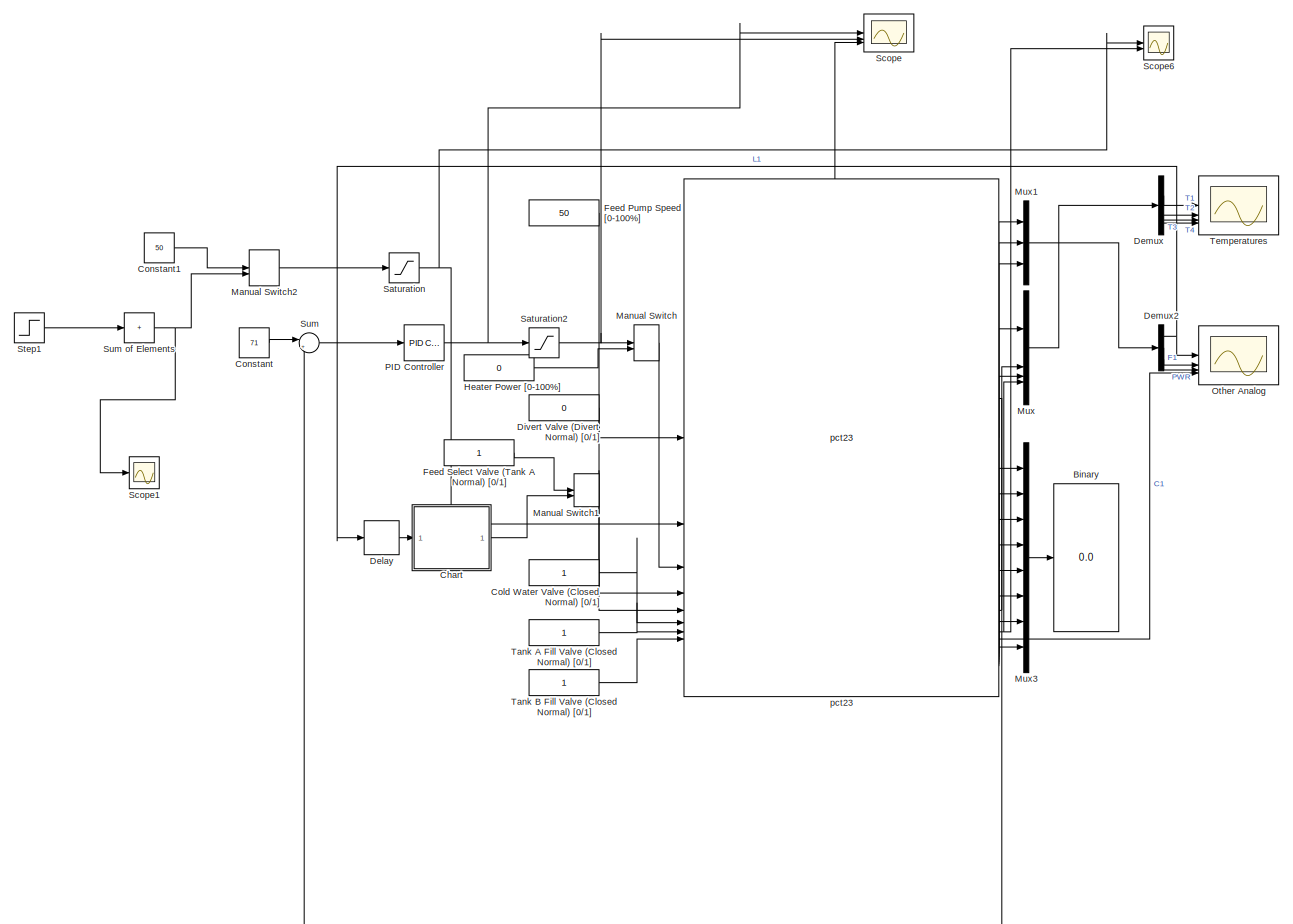
[diagram: root canvas - part 1/1, most of the canvas]
MODEL slx_b672d6bb47ad
KIND model
CONFIG AbsTol = auto
CONFIG EnableMultiTasking = off
CONFIG FixedStep = 1
CONFIG MaxStep = auto
CONFIG MinStep = auto
CONFIG RelTol = 1e-3
CONFIG SampleTimeConstraint = Unconstrained
CONFIG SolverName = FixedStepDiscrete
CONFIG StartTime = 0.0
CONFIG StopTime = 5*300
BLOCK [Display] Binary
  Decimation = 1
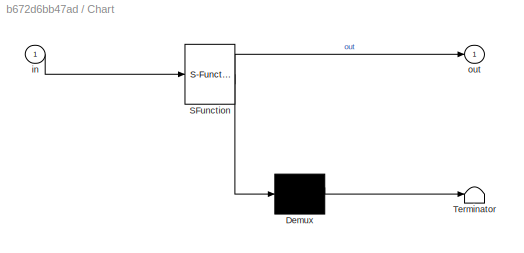
BLOCK [SubSystem] Chart
  ErrorFcn = Stateflow.Translate.translate
  PermitHierarchicalResolution = ExplicitOnly
  SFBlockType = Chart
  TreatAsAtomicUnit = on
BLOCK [Demux] Chart/ Demux 
  Outputs = 1
BLOCK [S-Function] Chart/ SFunction 
  EnableBusSupport = off
  FunctionName = sf_sfun
  PortCounts = [1 2]
  SFcnIsStateOwnerBlock = off
  SFunctionDeploymentMode = off
  Tag = Stateflow S-Function 3
BLOCK [Terminator] Chart/ Terminator 
BLOCK [Inport] Chart/in
BLOCK [Outport] Chart/out
BLOCK [Constant] Cold Water Valve (Closed Normal) [0//1]
BLOCK [Constant] Constant
  Value = 71
BLOCK [Constant] Constant1
  Value = 50
BLOCK [Delay] Delay
  InputPortMap = u0
BLOCK [Demux] Demux
BLOCK [Demux] Demux2
  Outputs = 3
BLOCK [Constant] Divert Valve (Divert Normal) [0//1]
  Value = 0
BLOCK [Constant] Feed Pump Speed [0-100%]
  Value = 50
BLOCK [Constant] Feed Select Valve (Tank A Normal) [0//1]
BLOCK [Constant] Heater Power [0-100%]
  Value = 0
BLOCK [ManualSwitch] Manual Switch
BLOCK [ManualSwitch] Manual Switch1
  CurrentSetting = 0
  NameLocation = right
BLOCK [ManualSwitch] Manual Switch2
BLOCK [Mux] Mux
  DisplayOption = bar
BLOCK [Mux] Mux1
  DisplayOption = bar
  Inputs = 3
BLOCK [Mux] Mux3
  DisplayOption = bar
  Inputs = 8
BLOCK [Scope] Other Analog
  Floating = off
  NumInputPorts = 4
  ScopeSpecificationString = Simulink.scopes.TimeScopeBlockCfg('CurrentConfiguration', extmgr.ConfigurationSet(extmgr.Configuration('Core','General UI',true),extmgr.Configuration('Core','Source UI',true),extmgr.Configuration('Sources','WiredSimulink',true),extmgr.Configuration('Visuals','Time Domain',true,'SerializedDisplays',{struct('MinYLimReal','191.80718','MaxYLimReal','211.663','YLabelReal','','MinYLimMag','191.80718','M...<+3417ch>
BLOCK [Reference] PID Controller  REF=slpidlib/PID Controller
  SourceBlock = slpidlib/PID Controller
  SourceType = PID 1dof
BLOCK [Saturate] Saturation
  LowerLimit = 0
  UpperLimit = 100
BLOCK [Saturate] Saturation2
  LowerLimit = 0
  UpperLimit = 100
BLOCK [Scope] Scope
  Floating = off
  NumInputPorts = 3
  ScopeSpecificationString = Simulink.scopes.TimeScopeBlockCfg('CurrentConfiguration', extmgr.ConfigurationSet(extmgr.Configuration('Core','General UI',true),extmgr.Configuration('Core','Source UI',true),extmgr.Configuration('Sources','WiredSimulink',true,'DataLoggingVariableName','ScopeData1'),extmgr.Configuration('Visuals','Time Domain',true,'SerializedDisplays',{struct('MinYLimReal','-0.44428','MaxYLimReal','78.25073','YLa...<+1472ch>
BLOCK [Scope] Scope1
  Floating = off
  NumInputPorts = 1
  ScopeSpecificationString = Simulink.scopes.TimeScopeBlockCfg('CurrentConfiguration', extmgr.ConfigurationSet(extmgr.Configuration('Core','General UI',true),extmgr.Configuration('Core','Source UI',true),extmgr.Configuration('Sources','WiredSimulink',true,'DataLoggingVariableName','uout','DataLogging',true,'DataLoggingSaveFormat','Array'),extmgr.Configuration('Visuals','Time Domain',true,'SerializedDisplays',{struct('MinYLimR...<+1528ch>
BLOCK [Scope] Scope6
  Floating = off
  NumInputPorts = 3
  ScopeSpecificationString = Simulink.scopes.TimeScopeBlockCfg('CurrentConfiguration', extmgr.ConfigurationSet(extmgr.Configuration('Core','General UI',true,'FigureColor',[1 1 1]),extmgr.Configuration('Core','Source UI',true),extmgr.Configuration('Sources','WiredSimulink',true,'DataLoggingVariableName','ScopeData1'),extmgr.Configuration('Visuals','Time Domain',true,'SerializedDisplays',{struct('MinYLimReal','-12.5','MaxYLimRe...<+1691ch>
BLOCK [Step] Step1
  After = [55,-5,-5,5]
  Before = [50, 0,0,0]
  SampleTime = 0
  Time = [300, 300*2,300*3,300*4]
BLOCK [Sum] Sum
  Inputs = |+-
BLOCK [Sum] Sum of Elements
  IconShape = rectangular
  Inputs = +
BLOCK [Constant] Tank A Fill Valve (Closed Normal) [0//1]
BLOCK [Constant] Tank B Fill Valve (Closed Normal) [0//1]
BLOCK [Scope] Temperatures
  Floating = off
  NumInputPorts = 4
  ScopeSpecificationString = Simulink.scopes.TimeScopeBlockCfg('CurrentConfiguration', extmgr.ConfigurationSet(extmgr.Configuration('Core','General UI',true),extmgr.Configuration('Core','Source UI',true),extmgr.Configuration('Sources','WiredSimulink',true,'DataLoggingVariableName','Temperatures','DataLogging',true),extmgr.Configuration('Visuals','Time Domain',true,'SerializedDisplays',{struct('MinYLimReal','45.14296','MaxYLim...<+3502ch>
BLOCK [Reference] pct23  REF=pct23_lib/pct23  (lib defined in slx_2960d62a0908)
  SourceBlock = pct23_lib/pct23
  SourceType = SubSystem
LINE Chart:1 -> Manual Switch1:2
LINE Cold Water Valve (Closed Normal) [0//1]:1 -> pct23:6
LINE Constant1:1 -> Manual Switch2:1
LINE Constant:1 -> Sum:1
LINE Delay:1 -> Chart:1
NET Demux2:1 -> Delay:1, Other Analog:1
LINE Demux2:2 -> Other Analog:2
LINE Demux2:3 -> Other Analog:3
LINE Demux:1 -> Temperatures:1
LINE Demux:2 -> Temperatures:2
LINE Demux:3 -> Temperatures:3
LINE Demux:4 -> Temperatures:4
LINE Divert Valve (Divert Normal) [0//1]:1 -> pct23:4
LINE Feed Pump Speed [0-100%]:1 -> pct23:1
LINE Feed Select Valve (Tank A Normal) [0//1]:1 -> Manual Switch1:1
LINE Heater Power [0-100%]:1 -> Manual Switch:2
LINE Manual Switch1:1 -> pct23:5
LINE Manual Switch2:1 -> Saturation:1
LINE Manual Switch:1 -> pct23:3
LINE Mux1:1 -> Demux2:1
LINE Mux3:1 -> Binary:1
LINE Mux:1 -> Demux:1
NET PID Controller:1 -> Saturation2:1, Scope:1
NET Saturation2:1 -> Manual Switch:1, Scope:2
NET Saturation:1 -> Scope6:1, pct23:2
LINE Step1:1 -> Sum of Elements:1
NET Sum of Elements:1 -> Manual Switch2:2, Scope1:1
LINE Sum:1 -> PID Controller:1
LINE Tank A Fill Valve (Closed Normal) [0//1]:1 -> pct23:7
LINE Tank B Fill Valve (Closed Normal) [0//1]:1 -> pct23:8
LINE pct23:1 -> Mux1:1
LINE pct23:10 -> Mux3:2
LINE pct23:11 -> Mux3:3
LINE pct23:12 -> Mux3:4
LINE pct23:13 -> Mux3:5
LINE pct23:14 -> Mux3:6
LINE pct23:15 -> Mux3:7
LINE pct23:16 -> Mux3:8
LINE pct23:2 -> Mux1:2
LINE pct23:3 -> Mux1:3
LINE pct23:4 -> Mux:1
NET pct23:5 -> Mux:2, Scope:3, Sum:2
LINE pct23:6 -> Mux:3
NET pct23:7 -> Mux:4, Scope6:2
LINE pct23:8 -> Other Analog:4
LINE pct23:9 -> Mux3:1
note: NET lines group one-source signal fan-out (src -> all destinations, sorted); 1:1 wires keep LINE
CHART Chart states=2 transitions=3
  STATE_LABEL 'Close\nout = 1;'
  STATE_LABEL 'Open\nout = 0;'
CHART  states=0 transitions=0
